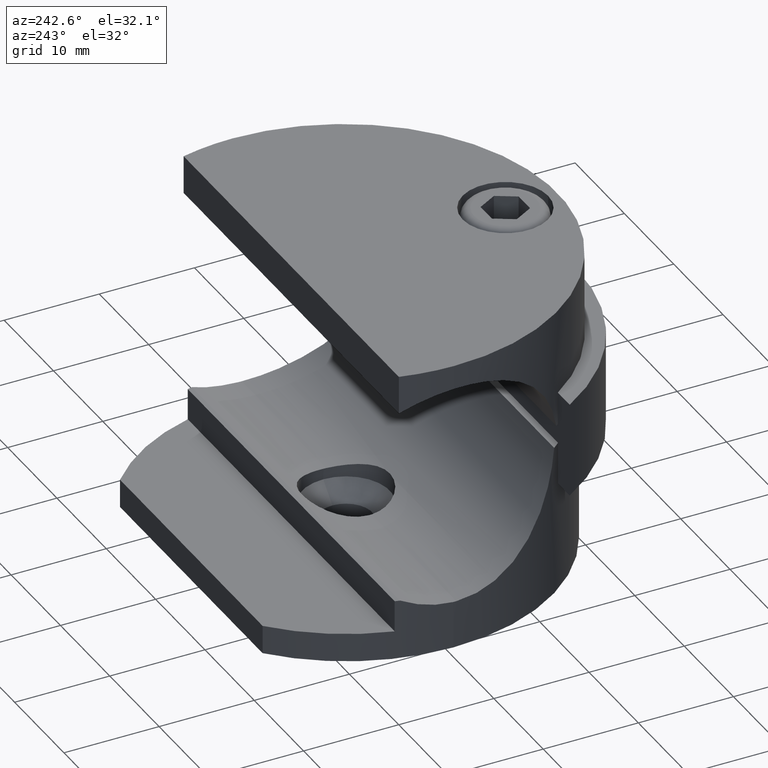
[diagram: clean part render]
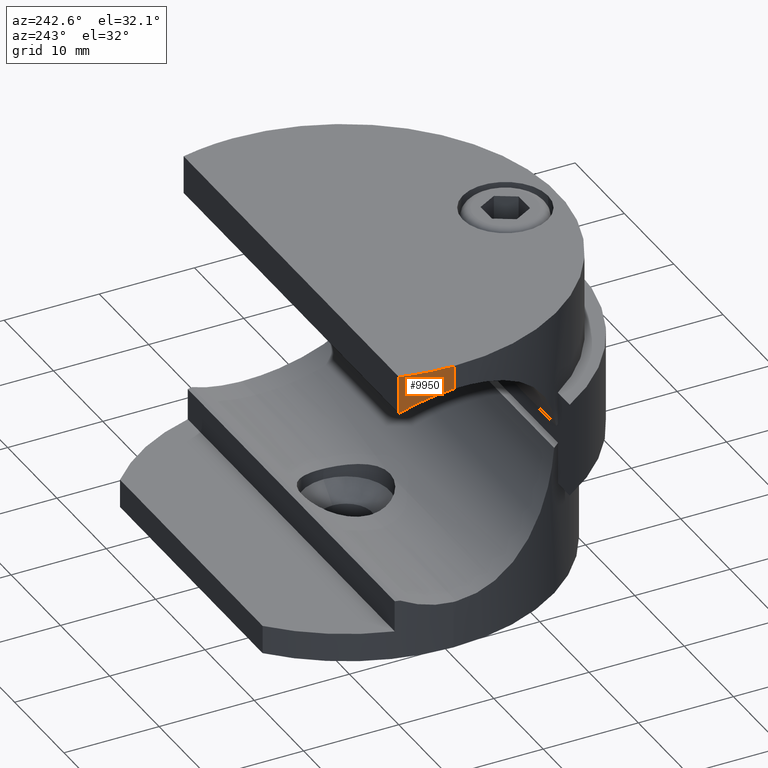
[diagram: same view with one face highlighted and labeled with its STEP entity id]
A machine part, auxiliary view. The second image highlights one B-rep face of the part: STEP entity #9950.
In plain terms, the highlighted cylindrical surface (partial cylindrical patch) has radius 22.5 mm, axis along (0, 0, -1).
Its self-contained STEP definition (entity closure, byte-faithful):
#43 = DIRECTION ( 'NONE',  ( -1.000000000000000000, 0.0000000000000000000, 0.0000000000000000000 ) ) ;
#859 = B_SPLINE_CURVE_WITH_KNOTS ( 'NONE', 3,
 ( #13510, #14583, #3661, #2604, #3618, #6179, #13355, #14733 ),
 .UNSPECIFIED., .F., .F.,
 ( 4, 2, 2, 4 ),
 ( 0.01803006841953715500, 0.02091038654211839100, 0.02235054560340901000, 0.02379070466469962500 ),
 .UNSPECIFIED. ) ;
#1677 = VERTEX_POINT ( 'NONE', #14318 ) ;
#2278 = DIRECTION ( 'NONE',  ( 0.0000000000000000000, 0.0000000000000000000, -1.000000000000000000 ) ) ;
#2604 = CARTESIAN_POINT ( 'NONE',  ( -22.25995636499158400, 3.311264234229962500, 9.414595601039616600 ) ) ;
#3395 = AXIS2_PLACEMENT_3D ( 'NONE', #7234, #4555, #12193 ) ;
#3523 = CARTESIAN_POINT ( 'NONE',  ( -22.50000000000000000, 0.0000000000000000000, 12.50000000000000000 ) ) ;
#3618 = CARTESIAN_POINT ( 'NONE',  ( -22.18686628075513000, 3.767709906349336000, 9.258596502152093100 ) ) ;
#3661 = CARTESIAN_POINT ( 'NONE',  ( -22.43798472962513200, 1.915033700483877800, 9.802475597344619400 ) ) ;
#4201 = VECTOR ( 'NONE', #2278, 1000.000000000000000 ) ;
#4555 = DIRECTION ( 'NONE',  ( 0.0000000000000000000, 0.0000000000000000000, -1.000000000000000000 ) ) ;
#5310 = CIRCLE ( 'NONE', #15287, 22.50000000000000000 ) ;
#5394 = ORIENTED_EDGE ( 'NONE', *, *, #5885, .F. ) ;
#5885 = EDGE_CURVE ( 'NONE', #12522, #8669, #11462, .T. ) ;
#5960 = CARTESIAN_POINT ( 'NONE',  ( -22.50000000000000000, 0.0000000000000000000, 12.50000000000000000 ) ) ;
#6179 = CARTESIAN_POINT ( 'NONE',  ( -22.01839617329639900, 4.652193381006291000, 8.898808837325528700 ) ) ;
#6229 = DIRECTION ( 'NONE',  ( 0.0000000000000000000, 0.0000000000000000000, -1.000000000000000000 ) ) ;
#6768 = ORIENTED_EDGE ( 'NONE', *, *, #7252, .T. ) ;
#7217 = EDGE_CURVE ( 'NONE', #8669, #1677, #859, .T. ) ;
#7234 = CARTESIAN_POINT ( 'NONE',  ( 0.0000000000000000000, 0.0000000000000000000, 12.50000000000000000 ) ) ;
#7252 = EDGE_CURVE ( 'NONE', #12522, #15092, #5310, .T. ) ;
#8125 = ORIENTED_EDGE ( 'NONE', *, *, #13382, .T. ) ;
#8669 = VERTEX_POINT ( 'NONE', #10105 ) ;
#9246 = LINE ( 'NONE', #11963, #11910 ) ;
#9859 = FACE_OUTER_BOUND ( 'NONE', #12903, .T. ) ;
#9950 = ADVANCED_FACE ( 'NONE', ( #9859 ), #12528, .T. ) ;
#10105 = CARTESIAN_POINT ( 'NONE',  ( -22.50000000000024500, -1.420550642675030900E-014, 9.989995996797242500 ) ) ;
#10337 = CARTESIAN_POINT ( 'NONE',  ( -21.81742422927142800, 5.500000000000001800, 12.50000000000000000 ) ) ;
#11462 = LINE ( 'NONE', #3523, #4201 ) ;
#11910 = VECTOR ( 'NONE', #13061, 1000.000000000000000 ) ;
#11963 = CARTESIAN_POINT ( 'NONE',  ( -21.81742422927142800, 5.500000000000001800, 12.50000000000000000 ) ) ;
#12193 = DIRECTION ( 'NONE',  ( -1.000000000000000000, 0.0000000000000000000, 0.0000000000000000000 ) ) ;
#12198 = CARTESIAN_POINT ( 'NONE',  ( 0.0000000000000000000, 0.0000000000000000000, 12.50000000000000000 ) ) ;
#12522 = VERTEX_POINT ( 'NONE', #5960 ) ;
#12528 = CYLINDRICAL_SURFACE ( 'NONE', #3395, 22.50000000000000000 ) ;
#12903 = EDGE_LOOP ( 'NONE', ( #5394, #6768, #8125, #13953 ) ) ;
#13061 = DIRECTION ( 'NONE',  ( 0.0000000000000000000, 0.0000000000000000000, -1.000000000000000000 ) ) ;
#13355 = CARTESIAN_POINT ( 'NONE',  ( -21.92277430148672200, 5.082096869435382300, 8.694513010835779100 ) ) ;
#13382 = EDGE_CURVE ( 'NONE', #15092, #1677, #9246, .T. ) ;
#13510 = CARTESIAN_POINT ( 'NONE',  ( -22.50000000000024500, -1.420550642675030900E-014, 9.989995996797242500 ) ) ;
#13953 = ORIENTED_EDGE ( 'NONE', *, *, #7217, .F. ) ;
#14318 = CARTESIAN_POINT ( 'NONE',  ( -21.81742422927142800, 5.500000000000001800, 8.465856099730654400 ) ) ;
#14583 = CARTESIAN_POINT ( 'NONE',  ( -22.50000000000001100, 0.9665240843278416500, 9.951304067488914400 ) ) ;
#14733 = CARTESIAN_POINT ( 'NONE',  ( -21.81742422927142800, 5.500000000000001800, 8.465856099730654400 ) ) ;
#15092 = VERTEX_POINT ( 'NONE', #10337 ) ;
#15287 = AXIS2_PLACEMENT_3D ( 'NONE', #12198, #6229, #43 ) ;